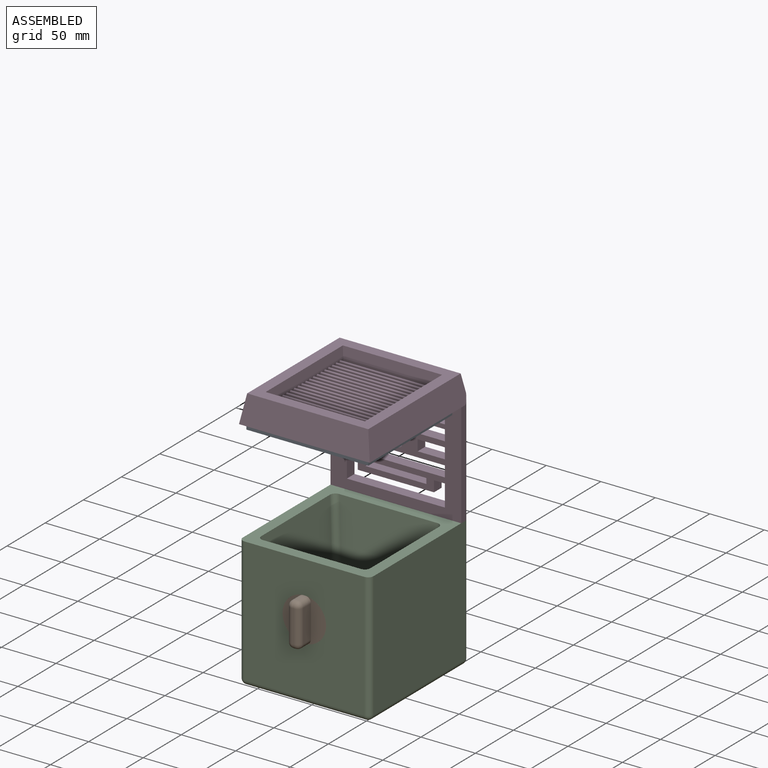
[diagram: assembled view]
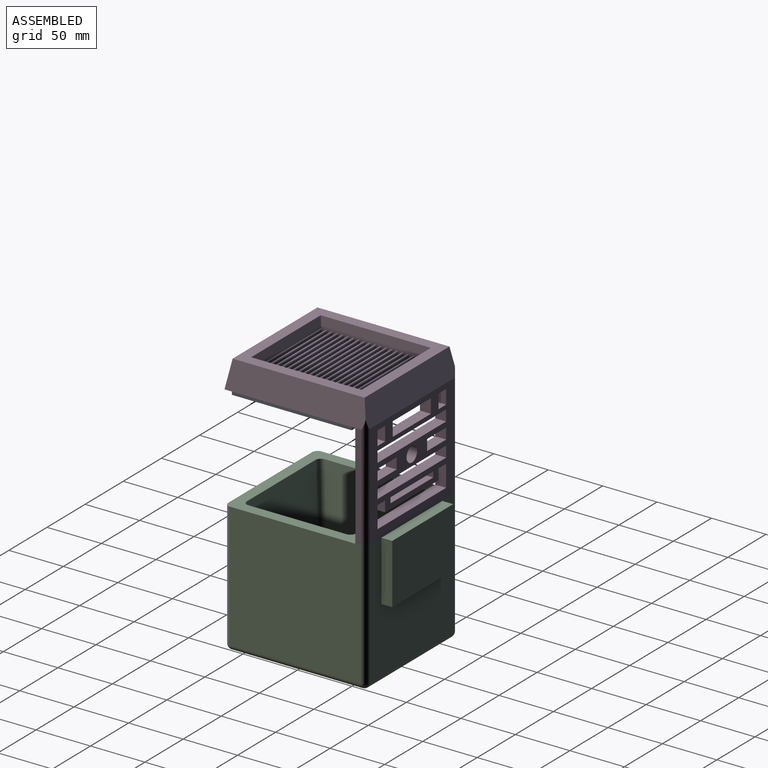
[diagram: assembled view, second angle]
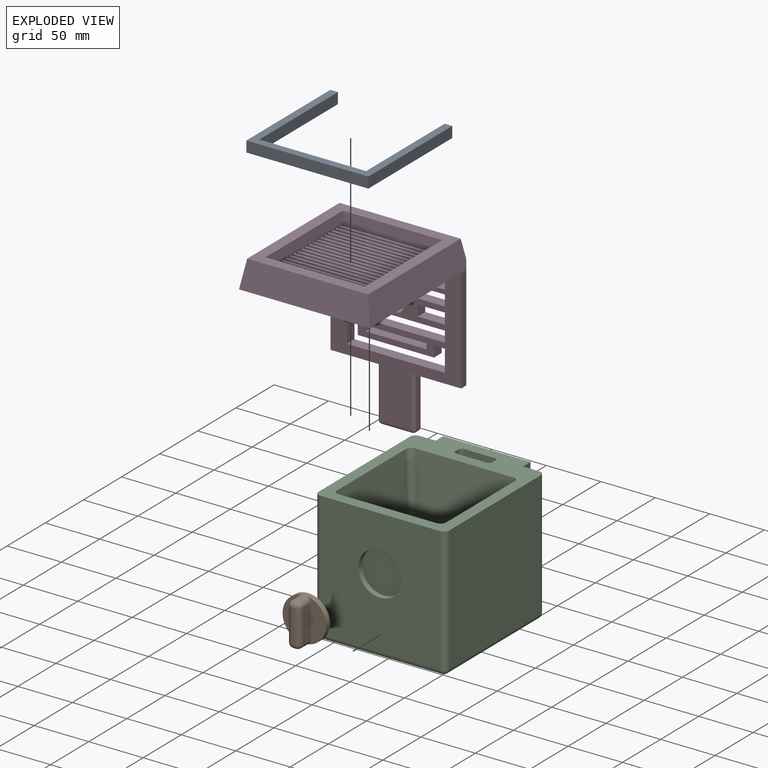
[diagram: exploded view]
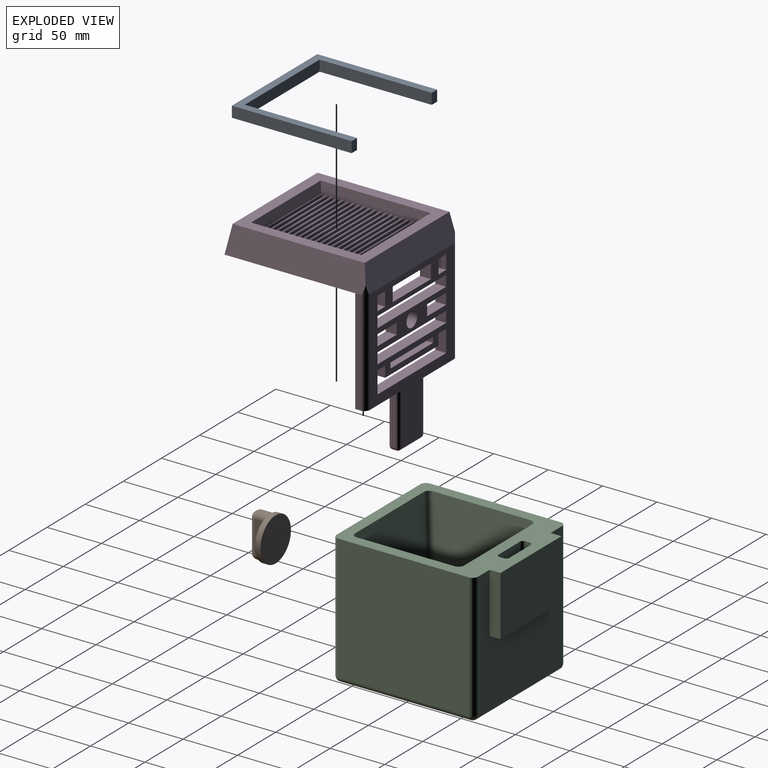
[diagram: exploded view, second angle]
ASSEMBLY  parts=4 mates=3
PART A: 10 faces, bbox 112x110x10 mm
  f0: plane 98x10mm, normal (0,1,0), area 980mm2, adj f1,f7,f8,f9
  f1: plane 103x10mm, normal (-1,0,0), area 1030mm2, adj f0,f2,f8,f9
  f2: plane 10x7mm, normal (0,1,0), area 70mm2, adj f1,f3,f8,f9
  f3: plane 110x10mm, normal (1,0,0), area 1100mm2, adj f2,f4,f8,f9
  f4: plane 112x10mm, normal (0,-1,0), area 1120mm2, adj f3,f5,f8,f9
  f5: plane 110x10mm, normal (-1,0,0), area 1100mm2, adj f4,f6,f8,f9
  f6: plane 10x7mm, normal (0,1,0), area 70mm2, adj f5,f7,f8,f9
  f7: plane 103x10mm, normal (1,0,0), area 1030mm2, adj f0,f6,f8,f9
  f8: plane 112x110mm, normal (0,0,-1), area 2226mm2, adj f0,f1,f2,f3,f4,f5,f6,f7
  f9: plane 112x110mm, normal (0,0,1), area 2226mm2, adj f0,f1,f2,f3,f4,f5,f6,f7
PART B: 19 faces, bbox 40x20x40.1 mm
  f0: plane 39.91x18.67mm, normal (0,-1,0), area 399.4mm2, adj f1,f4,f9,f18
  f1: cylinder r=20mm len=40mm, axis (0,1,0), area 681.7mm2, adj f0,f2,f3,f7,f9,f10,f12,f16
  f2: plane 39.91x18.67mm, normal (0,-1,0), area 399.4mm2, adj f1,f5,f7,f12
  f3: plane 40x40mm, normal (0,1,0), area 1256.6mm2, adj f1
  f4: plane 29.93x10mm, normal (1,0,0), area 299.3mm2, adj f0,f9,f15,f18
  f5: plane 29.93x10mm, normal (-1,0,0), area 299.3mm2, adj f2,f7,f11,f12
  f6: plane 30x2mm, normal (0,-1,0), area 60mm2, adj f10,f11,f15,f16
  f7: cylinder r=5mm len=10mm, axis (0,1,0), area 75.2mm2, adj f1,f2,f5,f8
  f8: sphere r=5mm, area 37.6mm2, adj f7,f10,f11
  f9: cylinder r=5mm len=10mm, axis (0,1,0), area 75.2mm2, adj f0,f1,f4,f13
  f10: torus R=15mm, axis (0,-1,0), area 19.1mm2, adj f1,f6,f8,f13
  f11: cylinder r=5mm len=29.93mm, axis (0,0,1), area 235.1mm2, adj f5,f6,f8,f14
  f12: cylinder r=5mm len=10mm, axis (0,1,0), area 75.2mm2, adj f1,f2,f5,f14
  f13: sphere r=5mm, area 37.6mm2, adj f9,f10,f15
  f14: sphere r=5mm, area 37.6mm2, adj f11,f12,f16
  f15: cylinder r=5mm len=29.93mm, axis (0,0,-1), area 235.1mm2, adj f4,f6,f13,f17
  f16: torus R=15mm, axis (0,-1,0), area 19.1mm2, adj f1,f6,f14,f17
  f17: sphere r=5mm, area 37.6mm2, adj f15,f16,f18
  f18: cylinder r=5mm len=10mm, axis (0,1,0), area 75.2mm2, adj f0,f1,f4,f17
PART C: 77 faces, bbox 120x140x120.2 mm
  f0: plane 115x110mm, normal (0,1,0), area 8250mm2, adj f1,f16,f20,f22,f59,f60,f61
  f1: plane 140x120mm, normal (0,0,1), area 6067.5mm2, adj f0,f2,f3,f4,f6,f7,f8,f9
  f2: plane 120x115mm, normal (1,0,0), area 13800mm2, adj f1,f11,f15,f16
  f3: plane 120x115mm, normal (-1,0,0), area 13800mm2, adj f1,f13,f19,f22
  f4: plane 115x110mm, normal (0,-1,0), area 11393.4mm2, adj f1,f11,f13,f14,f75
  f5: plane 120x110mm, normal (0,0,-1), area 12610.2mm2, adj f14,f15,f19,f20,f35,f36,f37,f38
  f6: plane 95.44x90.04mm, normal (0,1,0.09), area 7825.8mm2, adj f1,f25,f31,f34
  f7: plane 95.44x90.04mm, normal (-1,0,0.09), area 7825.8mm2, adj f1,f28,f32,f34
  f8: plane 95.44x90.04mm, normal (0,-1,0.09), area 7825.8mm2, adj f1,f23,f27,f28
  f9: plane 95.44x90.04mm, normal (1,0,0.09), area 7825.8mm2, adj f1,f23,f25,f26
  f10: plane 73.34x73.34mm, normal (0,0,1), area 5101.9mm2, adj f26,f27,f31,f32,f35,f36,f37,f38
  f11: cylinder r=5mm len=115mm, axis (0,0,-1), area 903.2mm2, adj f1,f2,f4,f12
  f12: sphere r=5mm, area 39.3mm2, adj f11,f14,f15
  f13: cylinder r=5mm len=115mm, axis (0,0,1), area 903.2mm2, adj f1,f3,f4,f17
  f14: cylinder r=5mm len=110mm, axis (1,0,0), area 863.9mm2, adj f4,f5,f12,f17
  f15: cylinder r=5mm len=120mm, axis (0,1,0), area 942.5mm2, adj f2,f5,f12,f18
  f16: cylinder r=5mm len=115mm, axis (0,0,-1), area 903.2mm2, adj f0,f1,f2,f18
  f17: sphere r=5mm, area 39.3mm2, adj f13,f14,f19
  f18: sphere r=5mm, area 39.3mm2, adj f15,f16,f20
  f19: cylinder r=5mm len=120mm, axis (0,-1,0), area 942.5mm2, adj f3,f5,f17,f21
  f20: cylinder r=5mm len=110mm, axis (1,0,0), area 863.9mm2, adj f0,f5,f18,f21
  f21: sphere r=5mm, area 39.3mm2, adj f19,f20,f22
  f22: cylinder r=5mm len=115mm, axis (0,0,1), area 903.2mm2, adj f0,f1,f3,f21
  f23: cylinder r=5mm len=95.79mm, axis (0.09,-0.09,-0.99), area 752.5mm2, adj f1,f8,f9,f24
  f24: sphere r=5mm, area 34.9mm2, adj f23,f26,f27
  f25: cylinder r=5mm len=95.79mm, axis (0.09,0.09,-0.99), area 752.5mm2, adj f1,f6,f9,f29
  f26: cylinder r=5mm len=73.34mm, axis (0,-1,0), area 544mm2, adj f9,f10,f24,f29
  f27: cylinder r=5mm len=73.34mm, axis (-1,0,0), area 544mm2, adj f8,f10,f24,f30
  f28: cylinder r=5mm len=95.79mm, axis (-0.09,-0.09,-0.99), area 752.5mm2, adj f1,f7,f8,f30
  f29: sphere r=5mm, area 34.9mm2, adj f25,f26,f31
  f30: sphere r=5mm, area 34.9mm2, adj f27,f28,f32
  f31: cylinder r=5mm len=73.34mm, axis (-1,0,0), area 544mm2, adj f6,f10,f29,f33
  f32: cylinder r=5mm len=73.34mm, axis (0,-1,0), area 544mm2, adj f7,f10,f30,f33
  f33: sphere r=5mm, area 34.9mm2, adj f31,f32,f34
  f34: cylinder r=5mm len=95.79mm, axis (-0.09,0.09,-0.99), area 752.5mm2, adj f1,f6,f7,f33
  f35: cone r=5mm half-angle=3deg, axis (0,0,-1), area 563.2mm2, adj f5,f10
  f36: cone r=3.5mm half-angle=3deg, axis (0,0,-1), area 374.5mm2, adj f5,f10
  f37: cone r=3.5mm half-angle=3deg, axis (0,0,-1), area 374.5mm2, adj f5,f10
  f38: cone r=2mm half-angle=3deg, axis (0,0,-1), area 185.7mm2, adj f5,f10
  f39: cone r=3.5mm half-angle=3deg, axis (0,0,-1), area 374.5mm2, adj f5,f10
  f40: cone r=3.5mm half-angle=3deg, axis (0,0,-1), area 374.5mm2, adj f5,f10
  f41: cone r=3.5mm half-angle=3deg, axis (0,0,-1), area 374.5mm2, adj f5,f10
  f42: cone r=3.5mm half-angle=3deg, axis (0,0,-1), area 374.5mm2, adj f5,f10
  f43: cone r=3.5mm half-angle=3deg, axis (0,0,-1), area 374.5mm2, adj f5,f10
  f44: cone r=3.5mm half-angle=3deg, axis (0,0,-1), area 374.5mm2, adj f5,f10
  f45: cone r=3.5mm half-angle=3deg, axis (0,0,-1), area 374.5mm2, adj f5,f10
  f46: cone r=2mm half-angle=3deg, axis (0,0,-1), area 185.7mm2, adj f5,f10
  f47: cone r=2mm half-angle=3deg, axis (0,0,-1), area 185.7mm2, adj f5,f10
  f48: cone r=3.5mm half-angle=3deg, axis (0,0,-1), area 374.5mm2, adj f5,f10
  f49: cone r=3.5mm half-angle=3deg, axis (0,0,-1), area 374.5mm2, adj f5,f10
  f50: cone r=2mm half-angle=3deg, axis (0,0,-1), area 185.7mm2, adj f5,f10
  f51: cone r=2mm half-angle=3deg, axis (0,0,-1), area 185.7mm2, adj f5,f10
  f52: cone r=2mm half-angle=3deg, axis (0,0,-1), area 185.7mm2, adj f5,f10
  f53: cone r=2mm half-angle=3deg, axis (0,0,-1), area 185.7mm2, adj f5,f10
  f54: plane 47x28mm, normal (0,1,0), area 1316mm2, adj f1,f63,f68,f69
  f55: plane 28x4mm, normal (0,0,1), area 112mm2, adj f64,f69,f70,f74
  f56: plane 47x4mm, normal (-1,0,0), area 188mm2, adj f1,f68,f71,f74
  f57: plane 47x4mm, normal (1,0,0), area 188mm2, adj f1,f63,f64,f65
  f58: plane 47x28mm, normal (0,-1,0), area 1316mm2, adj f1,f65,f70,f71
  f59: plane 55x10mm, normal (1,0,0), area 550mm2, adj f0,f1,f60,f62
  f60: plane 80x10mm, normal (0,0,-1), area 800mm2, adj f0,f59,f61,f62
  f61: plane 55x10mm, normal (-1,0,0), area 550mm2, adj f0,f1,f60,f62
  f62: plane 80x55mm, normal (0,1,0), area 4400mm2, adj f1,f59,f60,f61
  f63: cylinder r=3mm len=47mm, axis (0,0,1), area 221.5mm2, adj f1,f54,f57,f66
  f64: cylinder r=3mm len=4mm, axis (0,-1,0), area 18.8mm2, adj f55,f57,f66,f67
  f65: cylinder r=3mm len=47mm, axis (0,0,-1), area 221.5mm2, adj f1,f57,f58,f67
  f66: sphere r=3mm, area 14.1mm2, adj f63,f64,f69
  f67: sphere r=3mm, area 14.1mm2, adj f64,f65,f70
  f68: cylinder r=3mm len=47mm, axis (0,0,-1), area 221.5mm2, adj f1,f54,f56,f72
  f69: cylinder r=3mm len=28mm, axis (-1,0,0), area 131.9mm2, adj f54,f55,f66,f72
  f70: cylinder r=3mm len=28mm, axis (1,0,0), area 131.9mm2, adj f55,f58,f67,f73
  f71: cylinder r=3mm len=47mm, axis (0,0,1), area 221.5mm2, adj f1,f56,f58,f73
  f72: sphere r=3mm, area 14.1mm2, adj f68,f69,f74
  f73: sphere r=3mm, area 14.1mm2, adj f70,f71,f74
  f74: cylinder r=3mm len=4mm, axis (0,-1,0), area 18.8mm2, adj f55,f56,f72,f73
  f75: cylinder r=20mm len=40mm, axis (0,-1,0), area 628.3mm2, adj f4,f76
  f76: plane 40x40mm, normal (0,-1,0), area 1256.6mm2, adj f75
PART D: 183 faces, bbox 120x130x171 mm
  f0: plane 96x5mm, normal (1,0,0), area 480mm2, adj f2,f5,f49,f161
  f1: plane 96x5mm, normal (-1,0,0), area 480mm2, adj f3,f5,f47,f160
  f2: cylinder r=5mm len=104.31mm, axis (0,0,-1), area 776.2mm2, adj f0,f4,f49,f50,f161
  f3: cylinder r=5mm len=104.31mm, axis (0,0,1), area 776.2mm2, adj f1,f4,f47,f50,f160
  f4: plane 143x110mm, normal (0,1,0), area 7135.3mm2, adj f2,f3,f6,f7,f8,f9,f10,f11
  f5: plane 143x120mm, normal (0,-1,0), area 8095.3mm2, adj f0,f1,f6,f7,f8,f9,f10,f11
  f6: plane 70x10mm, normal (0,0,-1), area 700mm2, adj f4,f5,f7,f11
  f7: plane 10x10mm, normal (-1,0,0), area 100mm2, adj f4,f5,f6,f8
  f8: plane 10x10mm, normal (0,0,-1), area 100mm2, adj f4,f5,f7,f9
  f9: plane 20x10mm, normal (1,0,0), area 200mm2, adj f4,f5,f8,f10
  f10: plane 90x10mm, normal (0,0,1), area 900mm2, adj f4,f5,f9,f12
  f11: plane 10x10mm, normal (1,0,0), area 100mm2, adj f4,f5,f6,f13
  f12: plane 20x10mm, normal (-1,0,0), area 200mm2, adj f4,f5,f10,f13
  f13: plane 10x10mm, normal (0,0,-1), area 100mm2, adj f4,f5,f11,f12
  f14: plane 10x5mm, normal (1,0,0), area 50mm2, adj f4,f5,f15,f17
  f15: plane 56x10mm, normal (0,0,1), area 560mm2, adj f4,f5,f14,f16
  f16: plane 10x5mm, normal (-1,0,0), area 50mm2, adj f4,f5,f15,f17
  f17: plane 56x10mm, normal (0,0,-1), area 560mm2, adj f4,f5,f14,f16
  f18: plane 10x10mm, normal (1,0,0), area 100mm2, adj f4,f5,f19,f21
  f19: plane 90x10mm, normal (0,0,1), area 900mm2, adj f4,f5,f18,f20
  f20: plane 10x10mm, normal (-1,0,0), area 100mm2, adj f4,f5,f19,f21
  f21: plane 90x10mm, normal (0,0,-1), area 900mm2, adj f4,f5,f18,f20
  f22: plane 10x10mm, normal (1,0,0), area 100mm2, adj f4,f5,f23,f25
  f23: plane 25x10mm, normal (0,0,1), area 250mm2, adj f4,f5,f22,f24
  f24: plane 10x10mm, normal (-1,0,0), area 100mm2, adj f4,f5,f23,f25
  f25: plane 25x10mm, normal (0,0,-1), area 250mm2, adj f4,f5,f22,f24
  f26: plane 10x10mm, normal (-1,0,0), area 100mm2, adj f4,f5,f27,f28
  f27: plane 90x10mm, normal (0,0,1), area 900mm2, adj f4,f5,f26,f29
  f28: plane 90x10mm, normal (0,0,-1), area 900mm2, adj f4,f5,f26,f29
  f29: plane 10x10mm, normal (1,0,0), area 100mm2, adj f4,f5,f27,f28
  f30: plane 10x10mm, normal (-1,0,0), area 100mm2, adj f4,f5,f31,f33
  f31: plane 25x10mm, normal (0,0,-1), area 250mm2, adj f4,f5,f30,f32
  f32: plane 10x10mm, normal (1,0,0), area 100mm2, adj f4,f5,f31,f33
  f33: plane 25x10mm, normal (0,0,1), area 250mm2, adj f4,f5,f30,f32
  f34: plane 13x10mm, normal (-1,0,0), area 130mm2, adj f4,f5,f35,f37
  f35: plane 10x10mm, normal (0,0,-1), area 100mm2, adj f4,f5,f34,f36
  f36: plane 13x10mm, normal (1,0,0), area 130mm2, adj f4,f5,f35,f37
  f37: plane 10x10mm, normal (0,0,1), area 100mm2, adj f4,f5,f34,f36
  f38: plane 13x10mm, normal (-1,0,0), area 130mm2, adj f4,f5,f39,f40
  f39: plane 50x10mm, normal (0,0,1), area 500mm2, adj f4,f5,f38,f41
  f40: plane 50x10mm, normal (0,0,-1), area 500mm2, adj f4,f5,f38,f41
  f41: plane 13x10mm, normal (1,0,0), area 130mm2, adj f4,f5,f39,f40
  f42: plane 13x10mm, normal (1,0,0), area 130mm2, adj f4,f5,f43,f45
  f43: plane 10x10mm, normal (0,0,1), area 100mm2, adj f4,f5,f42,f44
  f44: plane 13x10mm, normal (-1,0,0), area 130mm2, adj f4,f5,f43,f45
  f45: plane 10x10mm, normal (0,0,-1), area 100mm2, adj f4,f5,f42,f44
  f46: cylinder r=6.92mm len=13.85mm, axis (0,-1,0), area 435.1mm2, adj f4,f5
  f47: plane 128.54x25mm, normal (-0.98,0,0.17), area 3172.8mm2, adj f1,f3,f48,f50,f51,f52
  f48: plane 120x25mm, normal (0,-0.98,0.17), area 2934.4mm2, adj f47,f49,f51,f52
  f49: plane 128.54x25mm, normal (0.98,0,0.17), area 3172.8mm2, adj f0,f2,f48,f50,f51,f52
  f50: plane 117.07x25mm, normal (0,0.98,0.17), area 2903.5mm2, adj f2,f3,f4,f47,f49,f51
  f51: plane 121.18x111.18mm, normal (0,0,1), area 4247.3mm2, adj f47,f48,f49,f50,f53,f54,f55,f56
  f52: plane 120x120mm, normal (0,0,-1), area 6850.3mm2, adj f5,f47,f48,f49,f57,f58,f59,f60
  f53: plane 101.18x10mm, normal (0.99,0,0.12), area 1007.1mm2, adj f51,f54,f56,f57,f61,f65,f69,f73
  f54: plane 91.18x10mm, normal (0,0.99,0.12), area 906.3mm2, adj f51,f53,f55,f137
  f55: plane 101.18x10mm, normal (-0.99,0,0.12), area 1007.1mm2, adj f51,f54,f56,f60,f64,f68,f72,f76
  f56: plane 91.18x10mm, normal (0,-0.99,0.12), area 906.3mm2, adj f51,f53,f55,f136
  f57: plane 15x4.73mm, normal (1,0,0), area 45.4mm2, adj f52,f53,f58,f59,f137,f138
  f58: plane 88.73x14mm, normal (0,-1,0), area 1242.2mm2, adj f52,f57,f60,f138
  f59: plane 88.73x14.04mm, normal (0,1,0), area 1245.5mm2, adj f52,f57,f60,f137
  f60: plane 15x4.73mm, normal (-1,0,0), area 45.4mm2, adj f52,f55,f58,f59,f137,f138
  f61: plane 15x5mm, normal (1,0,0), area 45.4mm2, adj f52,f53,f62,f63,f138,f139
  f62: plane 88.73x14mm, normal (0,-1,0), area 1242.2mm2, adj f52,f61,f64,f139
  f63: plane 88.73x14mm, normal (0,1,0), area 1242.2mm2, adj f52,f61,f64,f138
  f64: plane 15x5mm, normal (-1,0,0), area 45.4mm2, adj f52,f55,f62,f63,f138,f139
  f65: plane 15x5mm, normal (1,0,0), area 45.4mm2, adj f52,f53,f66,f67,f139,f140
  f66: plane 88.73x14mm, normal (0,-1,0), area 1242.2mm2, adj f52,f65,f68,f140
  f67: plane 88.73x14mm, normal (0,1,0), area 1242.2mm2, adj f52,f65,f68,f139
  f68: plane 15x5mm, normal (-1,0,0), area 45.4mm2, adj f52,f55,f66,f67,f139,f140
  f69: plane 15x5mm, normal (1,0,0), area 45.4mm2, adj f52,f53,f70,f71,f140,f141
  f70: plane 88.73x14mm, normal (0,-1,0), area 1242.2mm2, adj f52,f69,f72,f141
  f71: plane 88.73x14mm, normal (0,1,0), area 1242.2mm2, adj f52,f69,f72,f140
  f72: plane 15x5mm, normal (-1,0,0), area 45.4mm2, adj f52,f55,f70,f71,f140,f141
  f73: plane 15x5mm, normal (1,0,0), area 45.4mm2, adj f52,f53,f74,f75,f141,f142
  f74: plane 88.73x14mm, normal (0,-1,0), area 1242.2mm2, adj f52,f73,f76,f142
  f75: plane 88.73x14mm, normal (0,1,0), area 1242.2mm2, adj f52,f73,f76,f141
  f76: plane 15x5mm, normal (-1,0,0), area 45.4mm2, adj f52,f55,f74,f75,f141,f142
  f77: plane 15x5mm, normal (1,0,0), area 45.4mm2, adj f52,f53,f78,f79,f142,f143
  f78: plane 88.73x14mm, normal (0,-1,0), area 1242.2mm2, adj f52,f77,f80,f143
  f79: plane 88.73x14mm, normal (0,1,0), area 1242.2mm2, adj f52,f77,f80,f142
  f80: plane 15x5mm, normal (-1,0,0), area 45.4mm2, adj f52,f55,f78,f79,f142,f143
  f81: plane 15x5mm, normal (1,0,0), area 45.4mm2, adj f52,f53,f82,f83,f143,f144
  f82: plane 88.73x14mm, normal (0,-1,0), area 1242.2mm2, adj f52,f81,f84,f144
  f83: plane 88.73x14mm, normal (0,1,0), area 1242.2mm2, adj f52,f81,f84,f143
  f84: plane 15x5mm, normal (-1,0,0), area 45.4mm2, adj f52,f55,f82,f83,f143,f144
  f85: plane 15x5mm, normal (1,0,0), area 45.4mm2, adj f52,f53,f86,f87,f144,f145
  f86: plane 88.73x14mm, normal (0,-1,0), area 1242.2mm2, adj f52,f85,f88,f145
  f87: plane 88.73x14mm, normal (0,1,0), area 1242.2mm2, adj f52,f85,f88,f144
  f88: plane 15x5mm, normal (-1,0,0), area 45.4mm2, adj f52,f55,f86,f87,f144,f145
  f89: plane 15x5mm, normal (1,0,0), area 45.4mm2, adj f52,f53,f90,f91,f145,f146
  f90: plane 88.73x14mm, normal (0,-1,0), area 1242.2mm2, adj f52,f89,f92,f146
  f91: plane 88.73x14mm, normal (0,1,0), area 1242.2mm2, adj f52,f89,f92,f145
  f92: plane 15x5mm, normal (-1,0,0), area 45.4mm2, adj f52,f55,f90,f91,f145,f146
  f93: plane 15x5mm, normal (1,0,0), area 45.4mm2, adj f52,f53,f94,f95,f146,f147
  f94: plane 88.73x14mm, normal (0,-1,0), area 1242.2mm2, adj f52,f93,f96,f147
  f95: plane 88.73x14mm, normal (0,1,0), area 1242.2mm2, adj f52,f93,f96,f146
  f96: plane 15x5mm, normal (-1,0,0), area 45.4mm2, adj f52,f55,f94,f95,f146,f147
  f97: plane 15x5mm, normal (1,0,0), area 45.4mm2, adj f52,f53,f98,f99,f147,f148
  f98: plane 88.73x14mm, normal (0,-1,0), area 1242.2mm2, adj f52,f97,f100,f148
  f99: plane 88.73x14mm, normal (0,1,0), area 1242.2mm2, adj f52,f97,f100,f147
  f100: plane 15x5mm, normal (-1,0,0), area 45.4mm2, adj f52,f55,f98,f99,f147,f148
  f101: plane 15x5mm, normal (1,0,0), area 45.4mm2, adj f52,f53,f102,f103,f148,f149
  f102: plane 88.73x14mm, normal (0,-1,0), area 1242.2mm2, adj f52,f101,f104,f149
  f103: plane 88.73x14mm, normal (0,1,0), area 1242.2mm2, adj f52,f101,f104,f148
  f104: plane 15x5mm, normal (-1,0,0), area 45.4mm2, adj f52,f55,f102,f103,f148,f149
  f105: plane 15x5mm, normal (1,0,0), area 45.4mm2, adj f52,f53,f106,f107,f149,f150
  f106: plane 88.73x14mm, normal (0,-1,0), area 1242.2mm2, adj f52,f105,f108,f150
  f107: plane 88.73x14mm, normal (0,1,0), area 1242.2mm2, adj f52,f105,f108,f149
  f108: plane 15x5mm, normal (-1,0,0), area 45.4mm2, adj f52,f55,f106,f107,f149,f150
  f109: plane 15x5mm, normal (1,0,0), area 45.4mm2, adj f52,f53,f110,f111,f150,f151
  f110: plane 88.73x14mm, normal (0,-1,0), area 1242.2mm2, adj f52,f109,f112,f151
  f111: plane 88.73x14mm, normal (0,1,0), area 1242.2mm2, adj f52,f109,f112,f150
  f112: plane 15x5mm, normal (-1,0,0), area 45.4mm2, adj f52,f55,f110,f111,f150,f151
  f113: plane 15x5mm, normal (1,0,0), area 45.4mm2, adj f52,f53,f114,f115,f151,f152
  f114: plane 88.73x14mm, normal (0,-1,0), area 1242.2mm2, adj f52,f113,f116,f152
  f115: plane 88.73x14mm, normal (0,1,0), area 1242.2mm2, adj f52,f113,f116,f151
  f116: plane 15x5mm, normal (-1,0,0), area 45.4mm2, adj f52,f55,f114,f115,f151,f152
  f117: plane 15x5mm, normal (1,0,0), area 45.4mm2, adj f52,f53,f118,f119,f152,f153
  f118: plane 88.73x14mm, normal (0,-1,0), area 1242.2mm2, adj f52,f117,f120,f153
  f119: plane 88.73x14mm, normal (0,1,0), area 1242.2mm2, adj f52,f117,f120,f152
  f120: plane 15x5mm, normal (-1,0,0), area 45.4mm2, adj f52,f55,f118,f119,f152,f153
  f121: plane 15x5mm, normal (1,0,0), area 45.4mm2, adj f52,f53,f122,f123,f153,f154
  f122: plane 88.73x14mm, normal (0,-1,0), area 1242.2mm2, adj f52,f121,f124,f154
  f123: plane 88.73x14mm, normal (0,1,0), area 1242.2mm2, adj f52,f121,f124,f153
  f124: plane 15x5mm, normal (-1,0,0), area 45.4mm2, adj f52,f55,f122,f123,f153,f154
  f125: plane 15x5mm, normal (1,0,0), area 45.4mm2, adj f52,f53,f126,f127,f154,f155
  f126: plane 88.73x14mm, normal (0,-1,0), area 1242.2mm2, adj f52,f125,f128,f155
  f127: plane 88.73x14mm, normal (0,1,0), area 1242.2mm2, adj f52,f125,f128,f154
  f128: plane 15x5mm, normal (-1,0,0), area 45.4mm2, adj f52,f55,f126,f127,f154,f155
  f129: plane 15x5mm, normal (1,0,0), area 45.4mm2, adj f52,f53,f130,f131,f155,f156
  f130: plane 88.73x14mm, normal (0,-1,0), area 1242.2mm2, adj f52,f129,f132,f156
  f131: plane 88.73x14mm, normal (0,1,0), area 1242.2mm2, adj f52,f129,f132,f155
  f132: plane 15x5mm, normal (-1,0,0), area 45.4mm2, adj f52,f55,f130,f131,f155,f156
  f133: plane 88.73x14mm, normal (0,1,0), area 1242.2mm2, adj f52,f134,f135,f156
  f134: plane 15x4mm, normal (1,0,0), area 45.2mm2, adj f52,f53,f133,f136,f156
  f135: plane 15x4mm, normal (-1,0,0), area 45.2mm2, adj f52,f55,f133,f136,f156
  f136: plane 88.73x15mm, normal (0,-1,0), area 1330.9mm2, adj f52,f56,f134,f135
  f137: cylinder r=1mm len=88.73mm, axis (1,0,0), area 114.9mm2, adj f54,f57,f59,f60
  f138: cylinder r=1mm len=88.73mm, axis (-1,0,0), area 278.7mm2, adj f57,f58,f60,f61,f63,f64
  f139: cylinder r=1mm len=88.73mm, axis (-1,0,0), area 278.7mm2, adj f61,f62,f64,f65,f67,f68
  f140: cylinder r=1mm len=88.73mm, axis (-1,0,0), area 278.7mm2, adj f65,f66,f68,f69,f71,f72
  f141: cylinder r=1mm len=88.73mm, axis (-1,0,0), area 278.7mm2, adj f69,f70,f72,f73,f75,f76
  f142: cylinder r=1mm len=88.73mm, axis (-1,0,0), area 278.7mm2, adj f73,f74,f76,f77,f79,f80
  f143: cylinder r=1mm len=88.73mm, axis (-1,0,0), area 278.7mm2, adj f77,f78,f80,f81,f83,f84
  f144: cylinder r=1mm len=88.73mm, axis (-1,0,0), area 278.7mm2, adj f81,f82,f84,f85,f87,f88
  f145: cylinder r=1mm len=88.73mm, axis (-1,0,0), area 278.7mm2, adj f85,f86,f88,f89,f91,f92
  f146: cylinder r=1mm len=88.73mm, axis (-1,0,0), area 278.7mm2, adj f89,f90,f92,f93,f95,f96
  f147: cylinder r=1mm len=88.73mm, axis (-1,0,0), area 278.7mm2, adj f93,f94,f96,f97,f99,f100
  f148: cylinder r=1mm len=88.73mm, axis (-1,0,0), area 278.7mm2, adj f97,f98,f100,f101,f103,f104
  f149: cylinder r=1mm len=88.73mm, axis (-1,0,0), area 278.7mm2, adj f101,f102,f104,f105,f107,f108
  f150: cylinder r=1mm len=88.73mm, axis (-1,0,0), area 278.7mm2, adj f105,f106,f108,f109,f111,f112
  f151: cylinder r=1mm len=88.73mm, axis (-1,0,0), area 278.7mm2, adj f109,f110,f112,f113,f115,f116
  f152: cylinder r=1mm len=88.73mm, axis (-1,0,0), area 278.7mm2, adj f113,f114,f116,f117,f119,f120
  f153: cylinder r=1mm len=88.73mm, axis (-1,0,0), area 278.7mm2, adj f117,f118,f120,f121,f123,f124
  f154: cylinder r=1mm len=88.73mm, axis (-1,0,0), area 278.7mm2, adj f121,f122,f124,f125,f127,f128
  f155: cylinder r=1mm len=88.73mm, axis (-1,0,0), area 278.7mm2, adj f125,f126,f128,f129,f131,f132
  f156: cylinder r=1mm len=88.73mm, axis (-1,0,0), area 278.7mm2, adj f129,f130,f132,f133,f134,f135
  f157: plane 28x4mm, normal (0,0,-1), area 112mm2, adj f165,f166,f170,f171
  f158: plane 47x4mm, normal (1,0,0), area 188mm2, adj f161,f164,f170,f173
  f159: plane 47x4mm, normal (-1,0,0), area 188mm2, adj f160,f162,f166,f167
  f160: plane 46x10mm, normal (0,0,-1), area 428.5mm2, adj f1,f3,f4,f5,f159,f162,f167
  f161: plane 46x10mm, normal (0,0,-1), area 428.5mm2, adj f0,f2,f4,f5,f158,f164,f173
  f162: cylinder r=3mm len=47mm, axis (0,0,1), area 221.5mm2, adj f4,f159,f160,f163
  f163: sphere r=3mm, area 14.1mm2, adj f162,f165,f166
  f164: cylinder r=3mm len=47mm, axis (0,0,-1), area 221.5mm2, adj f4,f158,f161,f168
  f165: cylinder r=3mm len=28mm, axis (-1,0,0), area 131.9mm2, adj f4,f157,f163,f168
  f166: cylinder r=3mm len=4mm, axis (0,1,0), area 18.8mm2, adj f157,f159,f163,f169
  f167: cylinder r=3mm len=47mm, axis (0,0,1), area 221.5mm2, adj f5,f159,f160,f169
  f168: sphere r=3mm, area 14.1mm2, adj f164,f165,f170
  f169: sphere r=3mm, area 14.1mm2, adj f166,f167,f171
  f170: cylinder r=3mm len=4mm, axis (0,1,0), area 18.8mm2, adj f157,f158,f168,f172
  f171: cylinder r=3mm len=28mm, axis (-1,0,0), area 131.9mm2, adj f5,f157,f169,f172
  f172: sphere r=3mm, area 14.1mm2, adj f170,f171,f173
  f173: cylinder r=3mm len=47mm, axis (0,0,-1), area 221.5mm2, adj f5,f158,f161,f172
  f174: plane 98x5mm, normal (0,-1,0), area 490mm2, adj f52,f175,f181,f182
  f175: plane 103x5mm, normal (1,0,0), area 515mm2, adj f52,f174,f176,f182
  f176: plane 7x5mm, normal (0,-1,0), area 35mm2, adj f52,f175,f177,f182
  f177: plane 110x5mm, normal (-1,0,0), area 550mm2, adj f52,f176,f178,f182
  f178: plane 112x5mm, normal (0,1,0), area 560mm2, adj f52,f177,f179,f182
  f179: plane 110x5mm, normal (1,0,0), area 550mm2, adj f52,f178,f180,f182
  f180: plane 7x5mm, normal (0,-1,0), area 35mm2, adj f52,f179,f181,f182
  f181: plane 103x5mm, normal (-1,0,0), area 515mm2, adj f52,f174,f180,f182
  f182: plane 112x110mm, normal (0,0,-1), area 2226mm2, adj f174,f175,f176,f177,f178,f179,f180,f181
PLACE A t=(-154.43,23.49,5)mm
PLACE B t=(-120,5,0)mm
PLACE C at identity
PLACE D at identity
MATE fastened C.f55 <-> D.f157  axis (0,0,1) through (0,65,70)mm
MATE fastened C.f75 <-> B.f1  axis (0,-1,0) through (0,-55,70)mm
MATE fastened D.f182 <-> A.f9  axis (0,0,-1) through (0,-49,221)mm
